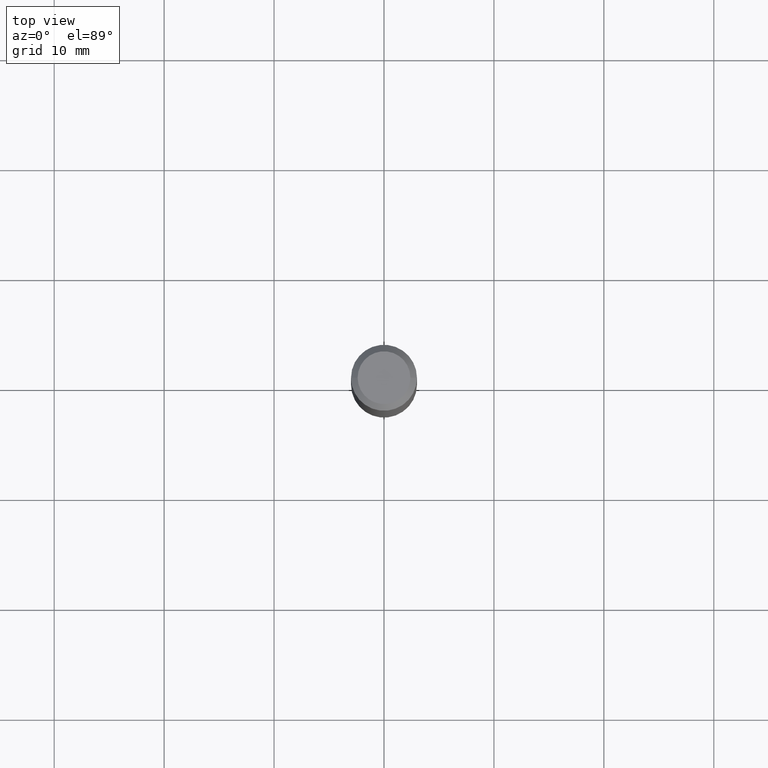
[diagram: clean part render]
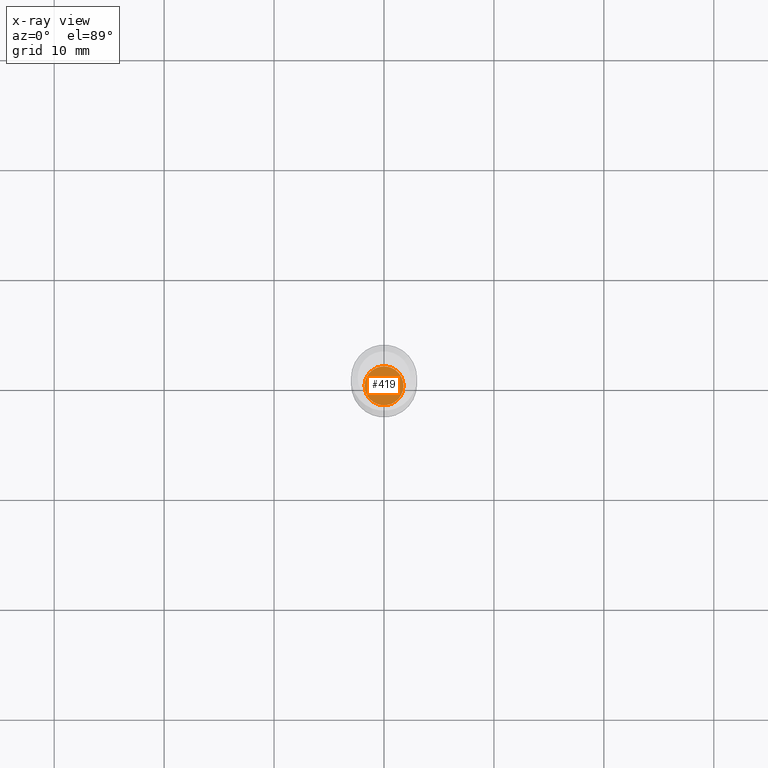
[diagram: x-ray — body ghosted, one internal face saturated and labeled with its STEP entity id]
A machine part, top view, then the same camera in x-ray: the body is ghosted and one INTERNAL B-rep face — a face not visible from any outside direction — is saturated and labeled: STEP entity #419.
In plain terms, the highlighted planar face has unit normal (-0, 0, 1).
Its self-contained STEP definition (entity closure, byte-faithful):
#8 = CIRCLE ( 'NONE', #107, 0.06980000000000000093 ) ;
#24 = VERTEX_POINT ( 'NONE', #296 ) ;
#60 = DIRECTION ( 'NONE',  ( -2.438088387897960049E-29, 3.491481338843145188E-15, 1.000000000000000000 ) ) ;
#63 = VERTEX_POINT ( 'NONE', #196 ) ;
#77 = AXIS2_PLACEMENT_3D ( 'NONE', #319, #60, #133 ) ;
#107 = AXIS2_PLACEMENT_3D ( 'NONE', #422, #351, #356 ) ;
#127 = CARTESIAN_POINT ( 'NONE',  ( 4.138955954468343780E-29, -5.909332165992023872E-15, -1.692500000000000115 ) ) ;
#131 = AXIS2_PLACEMENT_3D ( 'NONE', #127, #278, #344 ) ;
#133 = DIRECTION ( 'NONE',  ( 1.000000000000000000, -6.982962677686265922E-15, 4.876176775795935793E-29 ) ) ;
#170 = ORIENTED_EDGE ( 'NONE', *, *, #281, .F. ) ;
#196 = CARTESIAN_POINT ( 'NONE',  ( -0.06980000000000000093, -5.410724109257362932E-15, -1.692500000000000115 ) ) ;
#211 = EDGE_LOOP ( 'NONE', ( #214, #170 ) ) ;
#214 = ORIENTED_EDGE ( 'NONE', *, *, #340, .F. ) ;
#278 = DIRECTION ( 'NONE',  ( -2.445468806185136597E-29, 3.491481338843145583E-15, 1.000000000000000000 ) ) ;
#281 = EDGE_CURVE ( 'NONE', #63, #24, #8, .T. ) ;
#296 = CARTESIAN_POINT ( 'NONE',  ( 0.06980000000000000093, -6.396742960894525812E-15, -1.692500000000000115 ) ) ;
#319 = CARTESIAN_POINT ( 'NONE',  ( 4.138955954468343780E-29, -5.909332165992023872E-15, -1.692500000000000115 ) ) ;
#340 = EDGE_CURVE ( 'NONE', #24, #63, #375, .T. ) ;
#344 = DIRECTION ( 'NONE',  ( 1.000000000000000000, -6.982962677686271444E-15, 0.000000000000000000 ) ) ;
#351 = DIRECTION ( 'NONE',  ( -2.445468806185136597E-29, 3.491481338843145583E-15, 1.000000000000000000 ) ) ;
#356 = DIRECTION ( 'NONE',  ( 1.000000000000000000, -6.982962677686271444E-15, 0.000000000000000000 ) ) ;
#375 = CIRCLE ( 'NONE', #131, 0.06980000000000000093 ) ;
#398 = PLANE ( 'NONE',  #77 ) ;
#419 = ADVANCED_FACE ( 'NONE', ( #473 ), #398, .F. ) ;
#422 = CARTESIAN_POINT ( 'NONE',  ( 4.138955954468343780E-29, -5.909332165992023872E-15, -1.692500000000000115 ) ) ;
#473 = FACE_OUTER_BOUND ( 'NONE', #211, .T. ) ;